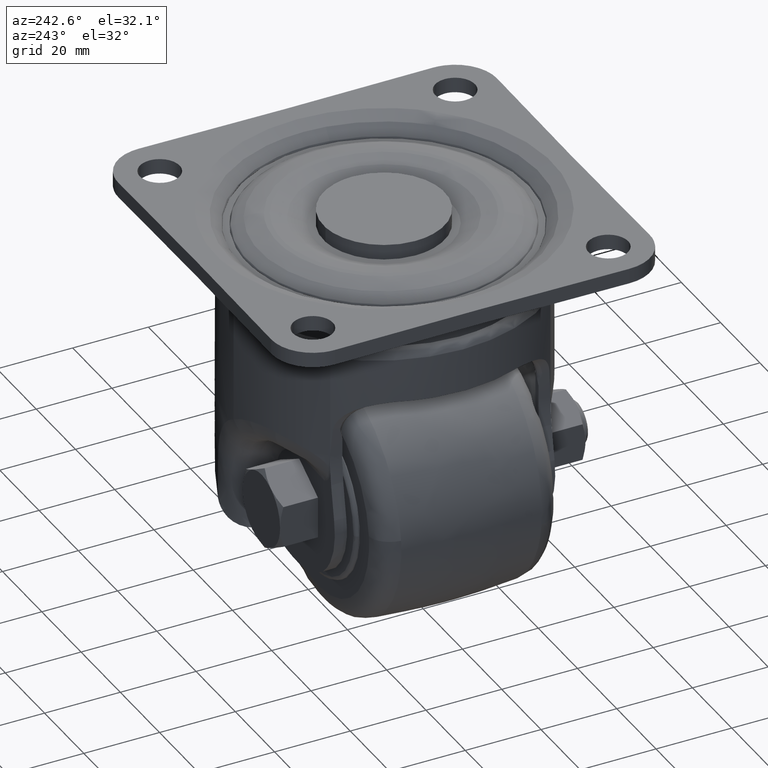
[diagram: clean part render]
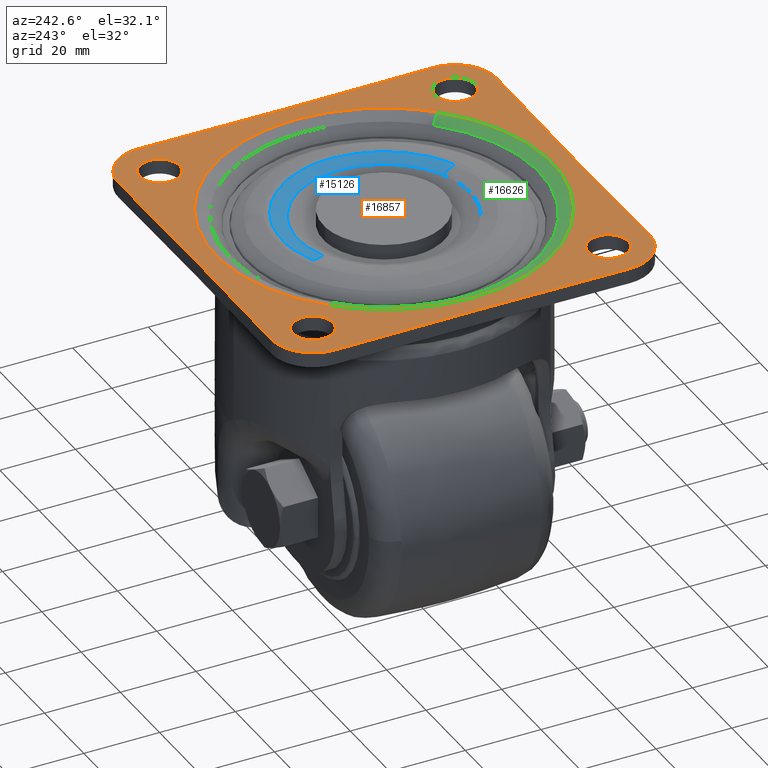
[diagram: same view with three faces highlighted in distinct colors, each labeled with its STEP entity id]
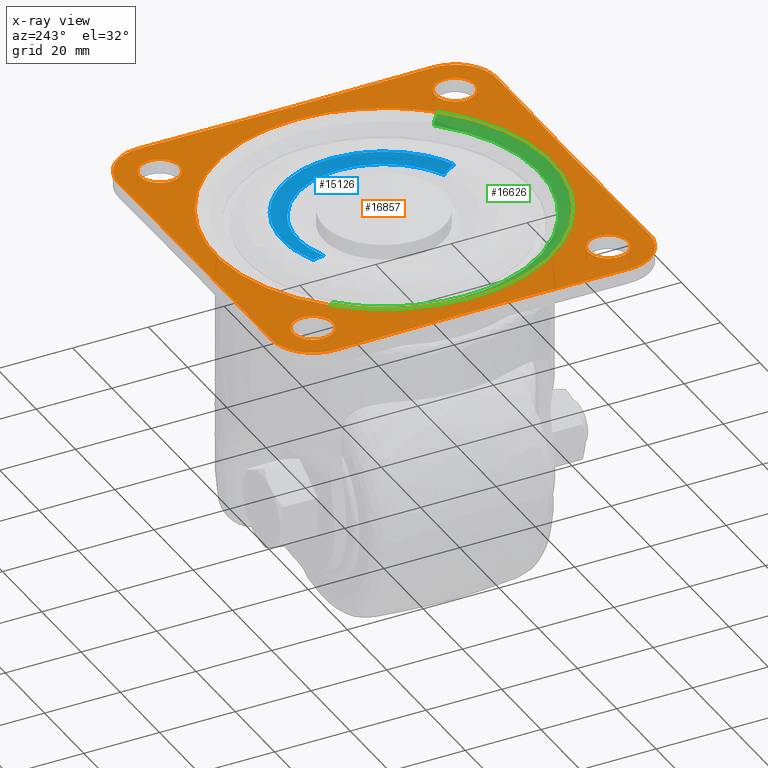
[diagram: x-ray of the same camera — body ghosted, the three highlighted faces saturated]
A machine part, auxiliary view with three faces highlighted in distinct colors.
The next image is the same camera in x-ray (body ghosted, the three faces saturated) — at least one of them is partly hidden behind the body in this view.
Their STEP definitions:

[orange] entity #16857 — the highlighted face is a freeform B-spline surface patch.
#15440=CARTESIAN_POINT('',(-39.320512832876382,-44.240207691695332,-6.938894E-017));
#15441=VERTEX_POINT('',#15440);
#15447=CARTESIAN_POINT('',(-33.750008000000008,-39.0,0.0));
#15448=VERTEX_POINT('',#15447);
#15449=CARTESIAN_POINT('',(-39.320512832876382,-44.240207691695332,0.0));
#15450=CARTESIAN_POINT('',(-39.160410007477232,-44.250000000000000,0.0));
#15451=CARTESIAN_POINT('',(-39.000008000000001,-44.250000000000000,0.0));
#15452=CARTESIAN_POINT('',(-33.750008000000001,-44.250000000000007,0.0));
#15453=CARTESIAN_POINT('',(-33.750008000000008,-39.0,0.0));
#15461=(BOUNDED_CURVE()B_SPLINE_CURVE(2,(#15449,#15450,#15451,#15452,#15453),.UNSPECIFIED.,.F.,.U.)B_SPLINE_CURVE_WITH_KNOTS((3,2,3),(0.239332962231485,0.250000000000000,0.500000000000000),.UNSPECIFIED.)CURVE()GEOMETRIC_REPRESENTATION_ITEM()RATIONAL_B_SPLINE_CURVE((0.976072041650734,0.987502787891100,1.0,0.707106781186547,1.0))REPRESENTATION_ITEM(''));
#15462=EDGE_CURVE('',#15441,#15448,#15461,.T.);
#15464=CARTESIAN_POINT('',(-38.679503167123627,-33.759792308304668,-6.938894E-017));
#15465=VERTEX_POINT('',#15464);
#15466=CARTESIAN_POINT('',(-33.750008000000008,-39.0,0.0));
#15467=CARTESIAN_POINT('',(-33.750008000000015,-34.061293149045717,0.0));
#15468=CARTESIAN_POINT('',(-38.679503167123634,-33.759792308304675,0.0));
#15476=(BOUNDED_CURVE()B_SPLINE_CURVE(2,(#15466,#15467,#15468),.UNSPECIFIED.,.F.,.U.)B_SPLINE_CURVE_WITH_KNOTS((3,3),(0.500000000000000,0.739332962231485),.UNSPECIFIED.)CURVE()GEOMETRIC_REPRESENTATION_ITEM()RATIONAL_B_SPLINE_CURVE((1.0,0.719603993295448,0.976072041650734))REPRESENTATION_ITEM(''));
#15477=EDGE_CURVE('',#15448,#15465,#15476,.T.);
#15551=CARTESIAN_POINT('',(-44.250008000000001,-39.0,0.0));
#15552=VERTEX_POINT('',#15551);
#15553=CARTESIAN_POINT('',(-38.679503167123620,-33.759792308304682,0.0));
#15554=CARTESIAN_POINT('',(-38.839605992522770,-33.750000000000000,0.0));
#15555=CARTESIAN_POINT('',(-39.000008000000001,-33.750000000000000,0.0));
#15556=CARTESIAN_POINT('',(-44.250007999999994,-33.750000000000007,0.0));
#15557=CARTESIAN_POINT('',(-44.250008000000001,-39.0,0.0));
#15565=(BOUNDED_CURVE()B_SPLINE_CURVE(2,(#15553,#15554,#15555,#15556,#15557),.UNSPECIFIED.,.F.,.U.)B_SPLINE_CURVE_WITH_KNOTS((3,2,3),(0.739332962231485,0.750000000000000,1.0),.UNSPECIFIED.)CURVE()GEOMETRIC_REPRESENTATION_ITEM()RATIONAL_B_SPLINE_CURVE((0.976072041650734,0.987502787891100,1.0,0.707106781186547,1.0))REPRESENTATION_ITEM(''));
#15566=EDGE_CURVE('',#15465,#15552,#15565,.T.);
#15568=CARTESIAN_POINT('',(-44.250008000000001,-39.0,0.0));
#15569=CARTESIAN_POINT('',(-44.250008000000008,-43.938706850954276,0.0));
#15570=CARTESIAN_POINT('',(-39.320512832876389,-44.240207691695332,0.0));
#15578=(BOUNDED_CURVE()B_SPLINE_CURVE(2,(#15568,#15569,#15570),.UNSPECIFIED.,.F.,.U.)B_SPLINE_CURVE_WITH_KNOTS((3,3),(0.0,0.239332962231485),.UNSPECIFIED.)CURVE()GEOMETRIC_REPRESENTATION_ITEM()RATIONAL_B_SPLINE_CURVE((1.0,0.719603993295448,0.976072041650733))REPRESENTATION_ITEM(''));
#15579=EDGE_CURVE('',#15552,#15441,#15578,.T.);
#15622=CARTESIAN_POINT('',(-39.320512832876382,33.759792308304668,-6.938894E-017));
#15623=VERTEX_POINT('',#15622);
#15629=CARTESIAN_POINT('',(-33.750008000000008,39.0,0.0));
#15630=VERTEX_POINT('',#15629);
#15631=CARTESIAN_POINT('',(-39.320512832876368,33.759792308304675,0.0));
#15632=CARTESIAN_POINT('',(-39.160410007477225,33.750000000000000,0.0));
#15633=CARTESIAN_POINT('',(-39.000008000000001,33.750000000000000,0.0));
#15634=CARTESIAN_POINT('',(-33.750008000000001,33.750000000000007,0.0));
#15635=CARTESIAN_POINT('',(-33.750008000000008,39.0,0.0));
#15643=(BOUNDED_CURVE()B_SPLINE_CURVE(2,(#15631,#15632,#15633,#15634,#15635),.UNSPECIFIED.,.F.,.U.)B_SPLINE_CURVE_WITH_KNOTS((3,2,3),(0.239332962231485,0.250000000000000,0.500000000000000),.UNSPECIFIED.)CURVE()GEOMETRIC_REPRESENTATION_ITEM()RATIONAL_B_SPLINE_CURVE((0.976072041650734,0.987502787891100,1.0,0.707106781186547,1.0))REPRESENTATION_ITEM(''));
#15644=EDGE_CURVE('',#15623,#15630,#15643,.T.);
#15646=CARTESIAN_POINT('',(-38.679503167123627,44.240207691695332,-6.938894E-017));
#15647=VERTEX_POINT('',#15646);
#15648=CARTESIAN_POINT('',(-33.750008000000008,39.0,0.0));
#15649=CARTESIAN_POINT('',(-33.750008000000015,43.938706850954276,0.0));
#15650=CARTESIAN_POINT('',(-38.679503167123634,44.240207691695332,0.0));
#15658=(BOUNDED_CURVE()B_SPLINE_CURVE(2,(#15648,#15649,#15650),.UNSPECIFIED.,.F.,.U.)B_SPLINE_CURVE_WITH_KNOTS((3,3),(0.500000000000000,0.739332962231485),.UNSPECIFIED.)CURVE()GEOMETRIC_REPRESENTATION_ITEM()RATIONAL_B_SPLINE_CURVE((1.0,0.719603993295448,0.976072041650734))REPRESENTATION_ITEM(''));
#15659=EDGE_CURVE('',#15630,#15647,#15658,.T.);
#15733=CARTESIAN_POINT('',(-44.250008000000001,39.0,0.0));
#15734=VERTEX_POINT('',#15733);
#15735=CARTESIAN_POINT('',(-38.679503167123620,44.240207691695332,0.0));
#15736=CARTESIAN_POINT('',(-38.839605992522770,44.250000000000000,0.0));
#15737=CARTESIAN_POINT('',(-39.000008000000001,44.250000000000000,0.0));
#15738=CARTESIAN_POINT('',(-44.250007999999994,44.250000000000007,0.0));
#15739=CARTESIAN_POINT('',(-44.250008000000001,39.0,0.0));
#15747=(BOUNDED_CURVE()B_SPLINE_CURVE(2,(#15735,#15736,#15737,#15738,#15739),.UNSPECIFIED.,.F.,.U.)B_SPLINE_CURVE_WITH_KNOTS((3,2,3),(0.739332962231485,0.750000000000000,1.0),.UNSPECIFIED.)CURVE()GEOMETRIC_REPRESENTATION_ITEM()RATIONAL_B_SPLINE_CURVE((0.976072041650734,0.987502787891100,1.0,0.707106781186547,1.0))REPRESENTATION_ITEM(''));
#15748=EDGE_CURVE('',#15647,#15734,#15747,.T.);
#15750=CARTESIAN_POINT('',(-44.250008000000001,39.0,0.0));
#15751=CARTESIAN_POINT('',(-44.250008000000008,34.061293149045710,0.0));
#15752=CARTESIAN_POINT('',(-39.320512832876382,33.759792308304682,0.0));
#15760=(BOUNDED_CURVE()B_SPLINE_CURVE(2,(#15750,#15751,#15752),.UNSPECIFIED.,.F.,.U.)B_SPLINE_CURVE_WITH_KNOTS((3,3),(0.0,0.239332962231485),.UNSPECIFIED.)CURVE()GEOMETRIC_REPRESENTATION_ITEM()RATIONAL_B_SPLINE_CURVE((1.0,0.719603993295447,0.976072041650734))REPRESENTATION_ITEM(''));
#15761=EDGE_CURVE('',#15734,#15623,#15760,.T.);
#15804=CARTESIAN_POINT('',(38.679503167123627,33.759792308304668,-7.632783E-017));
#15805=VERTEX_POINT('',#15804);
#15811=CARTESIAN_POINT('',(44.250008000000001,39.0,0.0));
#15812=VERTEX_POINT('',#15811);
#15813=CARTESIAN_POINT('',(38.679503167123634,33.759792308304675,0.0));
#15814=CARTESIAN_POINT('',(38.839605992522770,33.750000000000007,0.0));
#15815=CARTESIAN_POINT('',(39.000008000000001,33.750000000000000,0.0));
#15816=CARTESIAN_POINT('',(44.250007999999994,33.750000000000007,0.0));
#15817=CARTESIAN_POINT('',(44.250008000000001,39.0,0.0));
#15825=(BOUNDED_CURVE()B_SPLINE_CURVE(2,(#15813,#15814,#15815,#15816,#15817),.UNSPECIFIED.,.F.,.U.)B_SPLINE_CURVE_WITH_KNOTS((3,2,3),(0.239332962231485,0.250000000000000,0.500000000000000),.UNSPECIFIED.)CURVE()GEOMETRIC_REPRESENTATION_ITEM()RATIONAL_B_SPLINE_CURVE((0.976072041650734,0.987502787891100,1.0,0.707106781186547,1.0))REPRESENTATION_ITEM(''));
#15826=EDGE_CURVE('',#15805,#15812,#15825,.T.);
#15828=CARTESIAN_POINT('',(39.320512832876382,44.240207691695332,-7.632783E-017));
#15829=VERTEX_POINT('',#15828);
#15830=CARTESIAN_POINT('',(44.250008000000001,39.0,0.0));
#15831=CARTESIAN_POINT('',(44.250008000000001,43.938706850954269,0.0));
#15832=CARTESIAN_POINT('',(39.320512832876375,44.240207691695332,0.0));
#15840=(BOUNDED_CURVE()B_SPLINE_CURVE(2,(#15830,#15831,#15832),.UNSPECIFIED.,.F.,.U.)B_SPLINE_CURVE_WITH_KNOTS((3,3),(0.500000000000000,0.739332962231485),.UNSPECIFIED.)CURVE()GEOMETRIC_REPRESENTATION_ITEM()RATIONAL_B_SPLINE_CURVE((1.0,0.719603993295448,0.976072041650734))REPRESENTATION_ITEM(''));
#15841=EDGE_CURVE('',#15812,#15829,#15840,.T.);
#15915=CARTESIAN_POINT('',(33.750008000000008,39.0,0.0));
#15916=VERTEX_POINT('',#15915);
#15917=CARTESIAN_POINT('',(39.320512832876389,44.240207691695332,0.0));
#15918=CARTESIAN_POINT('',(39.160410007477225,44.250000000000000,0.0));
#15919=CARTESIAN_POINT('',(39.000008000000001,44.250000000000000,0.0));
#15920=CARTESIAN_POINT('',(33.750008000000001,44.250000000000007,0.0));
#15921=CARTESIAN_POINT('',(33.750008000000008,39.0,0.0));
#15929=(BOUNDED_CURVE()B_SPLINE_CURVE(2,(#15917,#15918,#15919,#15920,#15921),.UNSPECIFIED.,.F.,.U.)B_SPLINE_CURVE_WITH_KNOTS((3,2,3),(0.739332962231485,0.750000000000000,1.0),.UNSPECIFIED.)CURVE()GEOMETRIC_REPRESENTATION_ITEM()RATIONAL_B_SPLINE_CURVE((0.976072041650734,0.987502787891100,1.0,0.707106781186547,1.0))REPRESENTATION_ITEM(''));
#15930=EDGE_CURVE('',#15829,#15916,#15929,.T.);
#15932=CARTESIAN_POINT('',(33.750008000000008,39.0,0.0));
#15933=CARTESIAN_POINT('',(33.750008000000001,34.061293149045724,0.0));
#15934=CARTESIAN_POINT('',(38.679503167123634,33.759792308304675,0.0));
#15942=(BOUNDED_CURVE()B_SPLINE_CURVE(2,(#15932,#15933,#15934),.UNSPECIFIED.,.F.,.U.)B_SPLINE_CURVE_WITH_KNOTS((3,3),(0.0,0.239332962231485),.UNSPECIFIED.)CURVE()GEOMETRIC_REPRESENTATION_ITEM()RATIONAL_B_SPLINE_CURVE((1.0,0.719603993295448,0.976072041650734))REPRESENTATION_ITEM(''));
#15943=EDGE_CURVE('',#15916,#15805,#15942,.T.);
#15986=CARTESIAN_POINT('',(38.679503167123627,-44.240207691695332,-7.632783E-017));
#15987=VERTEX_POINT('',#15986);
#15993=CARTESIAN_POINT('',(44.250008000000001,-39.0,0.0));
#15994=VERTEX_POINT('',#15993);
#15995=CARTESIAN_POINT('',(38.679503167123634,-44.240207691695332,0.0));
#15996=CARTESIAN_POINT('',(38.839605992522770,-44.250000000000000,0.0));
#15997=CARTESIAN_POINT('',(39.000008000000001,-44.250000000000000,0.0));
#15998=CARTESIAN_POINT('',(44.250007999999994,-44.250000000000007,0.0));
#15999=CARTESIAN_POINT('',(44.250008000000001,-39.0,0.0));
#16007=(BOUNDED_CURVE()B_SPLINE_CURVE(2,(#15995,#15996,#15997,#15998,#15999),.UNSPECIFIED.,.F.,.U.)B_SPLINE_CURVE_WITH_KNOTS((3,2,3),(0.239332962231485,0.250000000000000,0.500000000000000),.UNSPECIFIED.)CURVE()GEOMETRIC_REPRESENTATION_ITEM()RATIONAL_B_SPLINE_CURVE((0.976072041650734,0.987502787891100,1.0,0.707106781186547,1.0))REPRESENTATION_ITEM(''));
#16008=EDGE_CURVE('',#15987,#15994,#16007,.T.);
#16010=CARTESIAN_POINT('',(39.320512832876382,-33.759792308304668,-7.632783E-017));
#16011=VERTEX_POINT('',#16010);
#16012=CARTESIAN_POINT('',(44.250008000000001,-39.0,0.0));
#16013=CARTESIAN_POINT('',(44.250008000000001,-34.061293149045717,0.0));
#16014=CARTESIAN_POINT('',(39.320512832876375,-33.759792308304675,0.0));
#16022=(BOUNDED_CURVE()B_SPLINE_CURVE(2,(#16012,#16013,#16014),.UNSPECIFIED.,.F.,.U.)B_SPLINE_CURVE_WITH_KNOTS((3,3),(0.500000000000000,0.739332962231485),.UNSPECIFIED.)CURVE()GEOMETRIC_REPRESENTATION_ITEM()RATIONAL_B_SPLINE_CURVE((1.0,0.719603993295448,0.976072041650734))REPRESENTATION_ITEM(''));
#16023=EDGE_CURVE('',#15994,#16011,#16022,.T.);
#16097=CARTESIAN_POINT('',(33.750008000000008,-39.0,0.0));
#16098=VERTEX_POINT('',#16097);
#16099=CARTESIAN_POINT('',(39.320512832876389,-33.759792308304675,0.0));
#16100=CARTESIAN_POINT('',(39.160410007477225,-33.750000000000000,0.0));
#16101=CARTESIAN_POINT('',(39.000008000000001,-33.750000000000000,0.0));
#16102=CARTESIAN_POINT('',(33.750008000000001,-33.750000000000007,0.0));
#16103=CARTESIAN_POINT('',(33.750008000000008,-39.0,0.0));
#16111=(BOUNDED_CURVE()B_SPLINE_CURVE(2,(#16099,#16100,#16101,#16102,#16103),.UNSPECIFIED.,.F.,.U.)B_SPLINE_CURVE_WITH_KNOTS((3,2,3),(0.739332962231485,0.750000000000000,1.0),.UNSPECIFIED.)CURVE()GEOMETRIC_REPRESENTATION_ITEM()RATIONAL_B_SPLINE_CURVE((0.976072041650734,0.987502787891100,1.0,0.707106781186547,1.0))REPRESENTATION_ITEM(''));
#16112=EDGE_CURVE('',#16011,#16098,#16111,.T.);
#16114=CARTESIAN_POINT('',(33.750008000000008,-39.0,0.0));
#16115=CARTESIAN_POINT('',(33.750008000000001,-43.938706850954283,0.0));
#16116=CARTESIAN_POINT('',(38.679503167123634,-44.240207691695332,0.0));
#16124=(BOUNDED_CURVE()B_SPLINE_CURVE(2,(#16114,#16115,#16116),.UNSPECIFIED.,.F.,.U.)B_SPLINE_CURVE_WITH_KNOTS((3,3),(0.0,0.239332962231485),.UNSPECIFIED.)CURVE()GEOMETRIC_REPRESENTATION_ITEM()RATIONAL_B_SPLINE_CURVE((1.0,0.719603993295448,0.976072041650734))REPRESENTATION_ITEM(''));
#16125=EDGE_CURVE('',#16098,#15987,#16124,.T.);
#16564=CARTESIAN_POINT('',(-32.030626062043240,30.845302345961620,-8.428043E-016));
#16565=VERTEX_POINT('',#16564);
#16579=CARTESIAN_POINT('',(-44.467894967102353,0.0,0.0));
#16580=VERTEX_POINT('',#16579);
#16581=CARTESIAN_POINT('',(-44.467894967102353,0.0,0.0));
#16582=CARTESIAN_POINT('',(-44.467894966839054,17.930093895800482,-4.214022E-016));
#16583=CARTESIAN_POINT('',(-32.030626062043233,30.845302345961628,-8.428043E-016));
#16591=(BOUNDED_CURVE()B_SPLINE_CURVE(2,(#16581,#16582,#16583),.UNSPECIFIED.,.F.,.U.)B_SPLINE_CURVE_WITH_KNOTS((3,3),(0.0,0.122155737437364),.UNSPECIFIED.)CURVE()GEOMETRIC_REPRESENTATION_ITEM()RATIONAL_B_SPLINE_CURVE((1.0,0.856885651461758,0.853629213191971))REPRESENTATION_ITEM(''));
#16592=EDGE_CURVE('',#16580,#16565,#16591,.T.);
#16594=CARTESIAN_POINT('',(32.030626062043247,-30.845302345961620,-7.826040E-016));
#16595=VERTEX_POINT('',#16594);
#16596=CARTESIAN_POINT('',(32.030626062043261,-30.845302345961628,-7.826040E-016));
#16597=CARTESIAN_POINT('',(18.912150409898615,-44.467894966638717,-7.155009E-016));
#16598=CARTESIAN_POINT('',(-3.694496E-010,-44.467894966746563,-5.490806E-016));
#16599=CARTESIAN_POINT('',(-44.467894967208515,-44.467894967000106,-1.577786E-016));
#16600=CARTESIAN_POINT('',(-44.467894967102353,0.0,0.0));
#16608=(BOUNDED_CURVE()B_SPLINE_CURVE(2,(#16596,#16597,#16598,#16599,#16600),.UNSPECIFIED.,.F.,.U.)B_SPLINE_CURVE_WITH_KNOTS((3,2,3),(0.622155737437364,0.750000000000000,1.0),.UNSPECIFIED.)CURVE()GEOMETRIC_REPRESENTATION_ITEM()RATIONAL_B_SPLINE_CURVE((0.853629213191971,0.850221129724790,1.0,0.707106781186547,1.0))REPRESENTATION_ITEM(''));
#16609=EDGE_CURVE('',#16595,#16580,#16608,.T.);
#16658=CARTESIAN_POINT('',(44.467894967102353,0.0,0.0));
#16659=VERTEX_POINT('',#16658);
#16660=CARTESIAN_POINT('',(44.467894967102353,0.0,0.0));
#16661=CARTESIAN_POINT('',(44.467894966839076,-17.930093895800496,-3.913020E-016));
#16662=CARTESIAN_POINT('',(32.030626062043261,-30.845302345961628,-7.826040E-016));
#16670=(BOUNDED_CURVE()B_SPLINE_CURVE(2,(#16660,#16661,#16662),.UNSPECIFIED.,.F.,.U.)B_SPLINE_CURVE_WITH_KNOTS((3,3),(0.500000000000000,0.622155737437364),.UNSPECIFIED.)CURVE()GEOMETRIC_REPRESENTATION_ITEM()RATIONAL_B_SPLINE_CURVE((1.0,0.856885651461758,0.853629213191971))REPRESENTATION_ITEM(''));
#16671=EDGE_CURVE('',#16659,#16595,#16670,.T.);
#16673=CARTESIAN_POINT('',(-32.030626062043233,30.845302345961628,-8.428043E-016));
#16674=CARTESIAN_POINT('',(-18.912150409898594,44.467894966638738,-7.705395E-016));
#16675=CARTESIAN_POINT('',(3.694645E-010,44.467894966746563,-5.913176E-016));
#16676=CARTESIAN_POINT('',(44.467894967208515,44.467894967000120,-1.699154E-016));
#16677=CARTESIAN_POINT('',(44.467894967102353,0.0,0.0));
#16685=(BOUNDED_CURVE()B_SPLINE_CURVE(2,(#16673,#16674,#16675,#16676,#16677),.UNSPECIFIED.,.F.,.U.)B_SPLINE_CURVE_WITH_KNOTS((3,2,3),(0.122155737437364,0.250000000000000,0.500000000000000),.UNSPECIFIED.)CURVE()GEOMETRIC_REPRESENTATION_ITEM()RATIONAL_B_SPLINE_CURVE((0.853629213191971,0.850221129724790,1.0,0.707106781186547,1.0))REPRESENTATION_ITEM(''));
#16686=EDGE_CURVE('',#16565,#16659,#16685,.T.);
#16694=CARTESIAN_POINT('',(-54.994023625542113,54.993999253999000,0.0));
#16695=CARTESIAN_POINT('',(54.994001681264429,54.993999253999000,0.0));
#16696=CARTESIAN_POINT('',(-54.994023625542113,-54.994019940467560,0.0));
#16697=CARTESIAN_POINT('',(54.994001681264429,-54.994019940467560,0.0));
#16698=B_SPLINE_SURFACE_WITH_KNOTS('',1,1,((#16694,#16696),(#16695,#16697)),.UNSPECIFIED.,.F.,.F.,.U.,(2,2),(2,2),(0.0,109.988025306806610),(0.0,109.988019194466600),.UNSPECIFIED.);
#16699=CARTESIAN_POINT('',(49.999088974296697,38.859327055020650,0.0));
#16700=VERTEX_POINT('',#16699);
#16701=CARTESIAN_POINT('',(38.859326373033753,49.999089506773103,0.0));
#16702=VERTEX_POINT('',#16701);
#16703=CARTESIAN_POINT('',(49.999088974296697,38.859327055020650,0.0));
#16704=CARTESIAN_POINT('',(50.012386699807109,39.865347592758219,0.0));
#16705=CARTESIAN_POINT('',(49.828526719753633,41.330964252392207,0.0));
#16706=CARTESIAN_POINT('',(49.186726440136788,43.242116746062713,0.0));
#16707=CARTESIAN_POINT('',(48.370703925766442,44.884973658260463,0.0));
#16708=CARTESIAN_POINT('',(47.314907620723858,46.278926478351281,0.0));
#16709=CARTESIAN_POINT('',(46.087397977937393,47.446515713429832,0.0));
#16710=CARTESIAN_POINT('',(44.875939578529241,48.352289629391329,0.0));
#16711=CARTESIAN_POINT('',(43.211853964028123,49.231566424973572,0.0));
#16712=CARTESIAN_POINT('',(41.147647190058208,49.867783785384681,0.0));
#16713=CARTESIAN_POINT('',(39.636672661983447,50.009177331080110,0.0));
#16714=CARTESIAN_POINT('',(38.859326373033753,49.999089506773103,0.0));
#16715=B_SPLINE_CURVE_WITH_KNOTS('',3,(#16703,#16704,#16705,#16706,#16707,#16708,#16709,#16710,#16711,#16712,#16713,#16714),.UNSPECIFIED.,.F.,.U.,(4,1,1,1,1,1,1,1,1,4),(0.000000040892363,3.018187092819023,4.390091998124733,6.036387196978076,8.505815266299655,9.603286536846007,11.112402728840721,13.033080650570620,15.228142632548270,17.560363550113639),.UNSPECIFIED.);
#16716=EDGE_CURVE('',#16700,#16702,#16715,.T.);
#16717=ORIENTED_EDGE('',*,*,#16716,.T.);
#16718=CARTESIAN_POINT('',(-38.859172592322402,49.999087381304903,0.0));
#16719=VERTEX_POINT('',#16718);
#16720=CARTESIAN_POINT('',(-38.859172592322402,49.999087381304903,0.0));
#16721=CARTESIAN_POINT('',(0.000076903978388,49.500875449576050,0.0));
#16722=CARTESIAN_POINT('',(38.859326373034172,49.999089506772791,0.0));
#16730=(BOUNDED_CURVE()B_SPLINE_CURVE(2,(#16720,#16721,#16722),.UNSPECIFIED.,.F.,.U.)CURVE()GEOMETRIC_REPRESENTATION_ITEM()QUASI_UNIFORM_CURVE()RATIONAL_B_SPLINE_CURVE((1.0,0.999917821586693,1.0))REPRESENTATION_ITEM(''));
#16731=EDGE_CURVE('',#16719,#16702,#16730,.T.);
#16732=ORIENTED_EDGE('',*,*,#16731,.F.);
#16733=CARTESIAN_POINT('',(-49.999113600735193,38.859141825077252,0.0));
#16734=VERTEX_POINT('',#16733);
#16735=CARTESIAN_POINT('',(-38.859172592322402,49.999087381304903,0.0));
#16736=CARTESIAN_POINT('',(-39.865213066904033,50.012390665620671,0.0));
#16737=CARTESIAN_POINT('',(-41.330838175129692,49.828501183736464,0.0));
#16738=CARTESIAN_POINT('',(-43.415812761010343,49.128430334916928,0.0));
#16739=CARTESIAN_POINT('',(-45.203847455734007,48.183912190046463,0.0));
#16740=CARTESIAN_POINT('',(-46.931267416434324,46.734482684405258,0.0));
#16741=CARTESIAN_POINT('',(-48.266529443362643,45.038211118198547,0.0));
#16742=CARTESIAN_POINT('',(-49.231586660992178,43.211739172483739,0.0));
#16743=CARTESIAN_POINT('',(-49.867787181001667,41.147497959673132,0.0));
#16744=CARTESIAN_POINT('',(-50.009207780252723,39.636500534122597,0.0));
#16745=CARTESIAN_POINT('',(-49.999113600735193,38.859141825077252,0.0));
#16746=B_SPLINE_CURVE_WITH_KNOTS('',3,(#16735,#16736,#16737,#16738,#16739,#16740,#16741,#16742,#16743,#16744,#16745),.UNSPECIFIED.,.F.,.U.,(4,1,1,1,1,1,1,1,4),(0.000000041193037,3.018236197495593,4.390163422996753,6.585253097896390,9.054691533246373,11.112583522299200,13.033292692487940,15.228390387014770,17.560649248636580),.UNSPECIFIED.);
#16747=EDGE_CURVE('',#16719,#16734,#16746,.T.);
#16748=ORIENTED_EDGE('',*,*,#16747,.T.);
#16749=CARTESIAN_POINT('',(-49.999113580391203,-38.859138340362598,0.0));
#16750=VERTEX_POINT('',#16749);
#16751=CARTESIAN_POINT('',(-49.999113580391203,-38.859138340362598,0.0));
#16752=CARTESIAN_POINT('',(-49.500887203865588,0.000001742465876,0.0));
#16753=CARTESIAN_POINT('',(-49.999113599427332,38.859141825093459,0.0));
#16761=(BOUNDED_CURVE()B_SPLINE_CURVE(2,(#16751,#16752,#16753),.UNSPECIFIED.,.F.,.U.)CURVE()GEOMETRIC_REPRESENTATION_ITEM()QUASI_UNIFORM_CURVE()RATIONAL_B_SPLINE_CURVE((1.0,0.999917816706712,1.0))REPRESENTATION_ITEM(''));
#16762=EDGE_CURVE('',#16750,#16734,#16761,.T.);
#16763=ORIENTED_EDGE('',*,*,#16762,.F.);
#16764=CARTESIAN_POINT('',(-38.859143584878602,-49.999107511081000,0.0));
#16765=VERTEX_POINT('',#16764);
#16766=CARTESIAN_POINT('',(-49.999113580391203,-38.859138340362598,0.0));
#16767=CARTESIAN_POINT('',(-50.012413211734767,-39.865177761765722,0.0));
#16768=CARTESIAN_POINT('',(-49.828549788335032,-41.330821378416807,0.0));
#16769=CARTESIAN_POINT('',(-49.186734360137017,-43.242010174183761,0.0));
#16770=CARTESIAN_POINT('',(-48.370711639888299,-44.884900704966732,0.0));
#16771=CARTESIAN_POINT('',(-47.120361187444423,-46.535667502377223,0.0));
#16772=CARTESIAN_POINT('',(-45.423572526004939,-48.014273517848707,0.0));
#16773=CARTESIAN_POINT('',(-43.473188314625283,-49.140118325653788,0.0));
#16774=CARTESIAN_POINT('',(-41.239099849840898,-49.859273928381207,0.0));
#16775=CARTESIAN_POINT('',(-39.636500571237818,-50.009188355071842,0.0));
#16776=CARTESIAN_POINT('',(-38.859143584878602,-49.999107511081000,0.0));
#16777=B_SPLINE_CURVE_WITH_KNOTS('',3,(#16766,#16767,#16768,#16769,#16770,#16771,#16772,#16773,#16774,#16775,#16776),.UNSPECIFIED.,.F.,.U.,(4,1,1,1,1,1,1,1,4),(0.000000041241520,3.018243525445113,4.390174081809194,6.036500062118861,8.505974303341635,10.563839516043750,12.758936492793080,15.228427359681000,17.560691883731032),.UNSPECIFIED.);
#16778=EDGE_CURVE('',#16750,#16765,#16777,.T.);
#16779=ORIENTED_EDGE('',*,*,#16778,.T.);
#16780=CARTESIAN_POINT('',(38.859112224408648,-49.999107261167403,0.0));
#16781=VERTEX_POINT('',#16780);
#16782=CARTESIAN_POINT('',(38.859112224408648,-49.999107261167403,0.0));
#16783=CARTESIAN_POINT('',(-0.000015681835654,-49.500878411463674,0.0));
#16784=CARTESIAN_POINT('',(-38.859143584898099,-49.999107509454802,0.0));
#16792=(BOUNDED_CURVE()B_SPLINE_CURVE(2,(#16782,#16783,#16784),.UNSPECIFIED.,.F.,.U.)CURVE()GEOMETRIC_REPRESENTATION_ITEM()QUASI_UNIFORM_CURVE()RATIONAL_B_SPLINE_CURVE((1.0,0.999917815801585,1.0))REPRESENTATION_ITEM(''));
#16793=EDGE_CURVE('',#16781,#16765,#16792,.T.);
#16794=ORIENTED_EDGE('',*,*,#16793,.F.);
#16795=CARTESIAN_POINT('',(49.999086581534897,-38.859138427465403,0.0));
#16796=VERTEX_POINT('',#16795);
#16797=CARTESIAN_POINT('',(38.859112224408648,-49.999107261167403,0.0));
#16798=CARTESIAN_POINT('',(39.590740556758973,-50.008577002566092,0.0));
#16799=CARTESIAN_POINT('',(40.964266549595962,-49.888686975865880,0.0));
#16800=CARTESIAN_POINT('',(42.997153043311819,-49.317301009768997,0.0));
#16801=CARTESIAN_POINT('',(44.725802692958680,-48.458381832613703,0.0));
#16802=CARTESIAN_POINT('',(46.275573588022041,-47.314715594379408,0.0));
#16803=CARTESIAN_POINT('',(47.397399532365583,-46.164546555663833,0.0));
#16804=CARTESIAN_POINT('',(48.449094877443628,-44.720640606517257,0.0));
#16805=CARTESIAN_POINT('',(49.182740579580738,-43.289145202963212,0.0));
#16806=CARTESIAN_POINT('',(49.842686737763252,-41.239177833148617,0.0));
#16807=CARTESIAN_POINT('',(50.011696107789767,-39.819436544613353,0.0));
#16808=CARTESIAN_POINT('',(49.999086581534897,-38.859138427465403,0.0));
#16809=B_SPLINE_CURVE_WITH_KNOTS('',3,(#16797,#16798,#16799,#16800,#16801,#16802,#16803,#16804,#16805,#16806,#16807,#16808),.UNSPECIFIED.,.F.,.U.,(4,1,1,1,1,1,1,1,1,4),(0.000000041236369,2.195061499117408,4.115786445490356,6.310878562661907,7.957221728796965,9.877852845926746,11.112611838742470,13.307715126677600,14.679660456290399,17.560693995647881),.UNSPECIFIED.);
#16810=EDGE_CURVE('',#16781,#16796,#16809,.T.);
#16811=ORIENTED_EDGE('',*,*,#16810,.T.);
#16812=CARTESIAN_POINT('',(49.999088974296697,38.859327055020650,0.0));
#16813=CARTESIAN_POINT('',(49.500875653249565,0.000094329118508,0.0));
#16814=CARTESIAN_POINT('',(49.999086581514973,-38.859138427463719,0.0));
#16822=(BOUNDED_CURVE()B_SPLINE_CURVE(2,(#16812,#16813,#16814),.UNSPECIFIED.,.F.,.U.)CURVE()GEOMETRIC_REPRESENTATION_ITEM()QUASI_UNIFORM_CURVE()RATIONAL_B_SPLINE_CURVE((1.0,0.999917821802801,1.0))REPRESENTATION_ITEM(''));
#16823=EDGE_CURVE('',#16700,#16796,#16822,.T.);
#16824=ORIENTED_EDGE('',*,*,#16823,.F.);
#16825=EDGE_LOOP('',(#16717,#16732,#16748,#16763,#16779,#16794,#16811,#16824));
#16826=FACE_OUTER_BOUND('',#16825,.T.);
#16827=ORIENTED_EDGE('',*,*,#16592,.T.);
#16828=ORIENTED_EDGE('',*,*,#16686,.T.);
#16829=ORIENTED_EDGE('',*,*,#16671,.T.);
#16830=ORIENTED_EDGE('',*,*,#16609,.T.);
#16831=EDGE_LOOP('',(#16827,#16828,#16829,#16830));
#16832=FACE_BOUND('',#16831,.T.);
#16833=ORIENTED_EDGE('',*,*,#16023,.F.);
#16834=ORIENTED_EDGE('',*,*,#16008,.F.);
#16835=ORIENTED_EDGE('',*,*,#16125,.F.);
#16836=ORIENTED_EDGE('',*,*,#16112,.F.);
#16837=EDGE_LOOP('',(#16833,#16834,#16835,#16836));
#16838=FACE_BOUND('',#16837,.T.);
#16839=ORIENTED_EDGE('',*,*,#15841,.F.);
#16840=ORIENTED_EDGE('',*,*,#15826,.F.);
#16841=ORIENTED_EDGE('',*,*,#15943,.F.);
#16842=ORIENTED_EDGE('',*,*,#15930,.F.);
#16843=EDGE_LOOP('',(#16839,#16840,#16841,#16842));
#16844=FACE_BOUND('',#16843,.T.);
#16845=ORIENTED_EDGE('',*,*,#15659,.F.);
#16846=ORIENTED_EDGE('',*,*,#15644,.F.);
#16847=ORIENTED_EDGE('',*,*,#15761,.F.);
#16848=ORIENTED_EDGE('',*,*,#15748,.F.);
#16849=EDGE_LOOP('',(#16845,#16846,#16847,#16848));
#16850=FACE_BOUND('',#16849,.T.);
#16851=ORIENTED_EDGE('',*,*,#15477,.F.);
#16852=ORIENTED_EDGE('',*,*,#15462,.F.);
#16853=ORIENTED_EDGE('',*,*,#15579,.F.);
#16854=ORIENTED_EDGE('',*,*,#15566,.F.);
#16855=EDGE_LOOP('',(#16851,#16852,#16853,#16854));
#16856=FACE_BOUND('',#16855,.T.);
#16857=ADVANCED_FACE('',(#16826,#16832,#16838,#16844,#16850,#16856),#16698,.F.);

[blue] entity #15126 — the highlighted face is a freeform B-spline surface patch.
#14872=CARTESIAN_POINT('',(-11.107844210143220,24.396503559949188,-1.000000000000001));
#14873=VERTEX_POINT('',#14872);
#14887=CARTESIAN_POINT('',(26.806222952348399,0.0,-1.0));
#14888=VERTEX_POINT('',#14887);
#14889=CARTESIAN_POINT('',(-11.107844210143218,24.396503559949192,-1.000000000000001));
#14890=CARTESIAN_POINT('',(-5.815302596032915,26.806222951975979,-1.000000000000001));
#14891=CARTESIAN_POINT('',(1.497923E-010,26.806222952019411,-1.000000000000001));
#14892=CARTESIAN_POINT('',(26.806222952407047,26.806222952219592,-1.000000000000000));
#14893=CARTESIAN_POINT('',(26.806222952348399,0.0,-1.0));
#14901=(BOUNDED_CURVE()B_SPLINE_CURVE(2,(#14889,#14890,#14891,#14892,#14893),.UNSPECIFIED.,.F.,.U.)B_SPLINE_CURVE_WITH_KNOTS((3,2,3),(0.179624510040583,0.250000000000000,0.500000000000000),.UNSPECIFIED.)CURVE()GEOMETRIC_REPRESENTATION_ITEM()RATIONAL_B_SPLINE_CURVE((0.881519651451072,0.917549984880850,1.0,0.707106781186548,1.0))REPRESENTATION_ITEM(''));
#14902=EDGE_CURVE('',#14873,#14888,#14901,.T.);
#14904=CARTESIAN_POINT('',(11.107844210143231,-24.396503559949181,-1.000000000000002));
#14905=VERTEX_POINT('',#14904);
#14906=CARTESIAN_POINT('',(26.806222952348399,0.0,-1.0));
#14907=CARTESIAN_POINT('',(26.806222952257254,-17.248956986939611,-1.000000000000001));
#14908=CARTESIAN_POINT('',(11.107844210143231,-24.396503559949178,-1.000000000000002));
#14916=(BOUNDED_CURVE()B_SPLINE_CURVE(2,(#14906,#14907,#14908),.UNSPECIFIED.,.F.,.U.)B_SPLINE_CURVE_WITH_KNOTS((3,3),(0.500000000000000,0.679624510040583),.UNSPECIFIED.)CURVE()GEOMETRIC_REPRESENTATION_ITEM()RATIONAL_B_SPLINE_CURVE((1.0,0.789556796305698,0.881519651451072))REPRESENTATION_ITEM(''));
#14917=EDGE_CURVE('',#14888,#14905,#14916,.T.);
#14966=CARTESIAN_POINT('',(9.405346878296907,-20.657255743158469,-1.883008796973252));
#14967=VERTEX_POINT('',#14966);
#15000=CARTESIAN_POINT('',(-9.405346878296903,20.657255743158469,-1.883008796973252));
#15001=VERTEX_POINT('',#15000);
#15015=CARTESIAN_POINT('',(-9.405346878296903,20.657255743158476,-1.883008796973251));
#15016=CARTESIAN_POINT('',(-10.217276592176432,22.440522214828906,-1.000000000094548));
#15017=CARTESIAN_POINT('',(-11.107844210143220,24.396503559949185,-1.000000000000001));
#15025=(BOUNDED_CURVE()B_SPLINE_CURVE(2,(#15015,#15016,#15017),.UNSPECIFIED.,.F.,.U.)B_SPLINE_CURVE_WITH_KNOTS((3,3),(-1.409530568128598,-0.607091926434839),.UNSPECIFIED.)CURVE()GEOMETRIC_REPRESENTATION_ITEM()RATIONAL_B_SPLINE_CURVE((0.945461484992675,0.923927245019978,0.944587428659079))REPRESENTATION_ITEM(''));
#15026=EDGE_CURVE('',#15001,#14873,#15025,.T.);
#15030=CARTESIAN_POINT('',(9.405346878296907,-20.657255743158476,-1.883008796973251));
#15031=CARTESIAN_POINT('',(10.217276592176443,-22.440522214828910,-1.000000000094549));
#15032=CARTESIAN_POINT('',(11.107844210143231,-24.396503559949185,-1.000000000000002));
#15040=(BOUNDED_CURVE()B_SPLINE_CURVE(2,(#15030,#15031,#15032),.UNSPECIFIED.,.F.,.U.)B_SPLINE_CURVE_WITH_KNOTS((3,3),(-1.409530568128598,-0.607091926434839),.UNSPECIFIED.)CURVE()GEOMETRIC_REPRESENTATION_ITEM()RATIONAL_B_SPLINE_CURVE((0.945461484992675,0.923927245019978,0.944587428659079))REPRESENTATION_ITEM(''));
#15041=EDGE_CURVE('',#14967,#14905,#15040,.T.);
#15046=CARTESIAN_POINT('',(-9.899226736468762,20.223463160180145,-1.971106621460883));
#15047=CARTESIAN_POINT('',(-9.614558535987090,20.353073947016444,-1.971106621460884));
#15048=CARTESIAN_POINT('',(11.157647978592129,29.810758458758286,-1.971106621460883));
#15049=CARTESIAN_POINT('',(20.484203218675201,9.326555240083076,-1.971106621460884));
#15050=CARTESIAN_POINT('',(29.810758458758286,-11.157647978592129,-1.971106621460883));
#15051=CARTESIAN_POINT('',(9.038551944267949,-20.615332490293486,-1.971106621460883));
#15052=CARTESIAN_POINT('',(8.753883743873113,-20.744943277090261,-1.971106621460883));
#15053=CARTESIAN_POINT('',(-10.840197301061469,22.145803566602897,-0.952497459596117));
#15054=CARTESIAN_POINT('',(-10.528469977230086,22.287734501114723,-0.952497459596117));
#15055=CARTESIAN_POINT('',(12.218237719330569,32.644418800584219,-0.952497459596117));
#15056=CARTESIAN_POINT('',(22.431328259957390,10.213090540626819,-0.952497459596117));
#15057=CARTESIAN_POINT('',(32.644418800584219,-12.218237719330567,-0.952497459596117));
#15058=CARTESIAN_POINT('',(9.897711104120889,-22.574922018755736,-0.952497459596117));
#15059=CARTESIAN_POINT('',(9.585983780384600,-22.716852953224269,-0.952497459596117));
#15060=CARTESIAN_POINT('',(-11.882145081857878,24.274433723354353,-1.002200097631840));
#15061=CARTESIAN_POINT('',(-11.540454872272758,24.430006902387532,-1.002200097631840));
#15062=CARTESIAN_POINT('',(13.392641221714506,35.782164247461516,-1.002200097631840));
#15063=CARTESIAN_POINT('',(24.587402734588007,11.194761512873507,-1.002200097631840));
#15064=CARTESIAN_POINT('',(35.782164247461516,-13.392641221714500,-1.002200097631840));
#15065=CARTESIAN_POINT('',(10.849068153580953,-24.744798566739899,-1.002200097631840));
#15066=CARTESIAN_POINT('',(10.507377944100059,-24.900371745725632,-1.002200097631840));
#15074=(BOUNDED_SURFACE()B_SPLINE_SURFACE(2,2,((#15046,#15053,#15060),(#15047,#15054,#15061),(#15048,#15055,#15062),(#15049,#15056,#15063),(#15050,#15057,#15064),(#15051,#15058,#15065),(#15052,#15059,#15066)),.UNSPECIFIED.,.F.,.F.,.U.)B_SPLINE_SURFACE_WITH_KNOTS((3,1,2,1,3),(3,3),(0.0,0.895230753989615,45.656768439673911,90.418306125358200,91.313536879069900),(0.0,4.676142970991682),.UNSPECIFIED.)GEOMETRIC_REPRESENTATION_ITEM()RATIONAL_B_SPLINE_SURFACE(((0.958821235226728,0.932512914545240,0.957848601613593),(0.953269631550781,0.927113636834173,0.952302629515404),(0.670137844163037,0.651750473652961,0.669458052593221),(0.947718027874834,0.921714359123106,0.946756657417214),(0.670137844163037,0.651750473652961,0.669458052593221),(0.953269631549058,0.927113636832497,0.952302629513682),(0.958821235223281,0.932512914541888,0.957848601610150)))REPRESENTATION_ITEM('')SURFACE());
#15075=CARTESIAN_POINT('',(22.697637866939900,0.0,-1.883008796979205));
#15076=VERTEX_POINT('',#15075);
#15077=CARTESIAN_POINT('',(22.697637866939900,0.0,-1.883008796979205));
#15078=CARTESIAN_POINT('',(22.697637866942632,-14.605212378345696,-1.883008796976229));
#15079=CARTESIAN_POINT('',(9.405346878296905,-20.657255743158476,-1.883008796973252));
#15087=(BOUNDED_CURVE()B_SPLINE_CURVE(2,(#15077,#15078,#15079),.UNSPECIFIED.,.F.,.U.)B_SPLINE_CURVE_WITH_KNOTS((3,3),(0.500000000000000,0.679624510041905),.UNSPECIFIED.)CURVE()GEOMETRIC_REPRESENTATION_ITEM()RATIONAL_B_SPLINE_CURVE((1.0,0.789556796304148,0.881519651452426))REPRESENTATION_ITEM(''));
#15088=EDGE_CURVE('',#15076,#14967,#15087,.T.);
#15089=ORIENTED_EDGE('',*,*,#15088,.T.);
#15090=ORIENTED_EDGE('',*,*,#15041,.T.);
#15091=ORIENTED_EDGE('',*,*,#14917,.F.);
#15092=ORIENTED_EDGE('',*,*,#14902,.F.);
#15093=ORIENTED_EDGE('',*,*,#15026,.F.);
#15094=CARTESIAN_POINT('',(10.480602808882800,20.133050675488871,-1.883008796972406));
#15095=VERTEX_POINT('',#15094);
#15096=CARTESIAN_POINT('',(-9.405346878296903,20.657255743158476,-1.883008796973252));
#15097=CARTESIAN_POINT('',(-4.923992188206571,22.697637866952885,-1.883008796972889));
#15098=CARTESIAN_POINT('',(-2.503681E-012,22.697637866953588,-1.883008796972669));
#15099=CARTESIAN_POINT('',(5.554076651082301,22.697637866954391,-1.883008796972422));
#15100=CARTESIAN_POINT('',(10.480602808882800,20.133050675488871,-1.883008796972406));
#15108=(BOUNDED_CURVE()B_SPLINE_CURVE(2,(#15096,#15097,#15098,#15099,#15100),.UNSPECIFIED.,.F.,.U.)B_SPLINE_CURVE_WITH_KNOTS((3,2,3),(0.179624510041905,0.250000000000000,0.328552124121913),.UNSPECIFIED.)CURVE()GEOMETRIC_REPRESENTATION_ITEM()RATIONAL_B_SPLINE_CURVE((0.881519651452426,0.917549984882399,1.0,0.907970462085196,0.873773849651720))REPRESENTATION_ITEM(''));
#15109=EDGE_CURVE('',#15001,#15095,#15108,.T.);
#15110=ORIENTED_EDGE('',*,*,#15109,.T.);
#15111=CARTESIAN_POINT('',(10.480602808882800,20.133050675488871,-1.883008796972406));
#15112=CARTESIAN_POINT('',(22.697637866940948,13.773264768734110,-1.883008796976293));
#15113=CARTESIAN_POINT('',(22.697637866939900,0.0,-1.883008796979205));
#15121=(BOUNDED_CURVE()B_SPLINE_CURVE(2,(#15111,#15112,#15113),.UNSPECIFIED.,.F.,.U.)B_SPLINE_CURVE_WITH_KNOTS((3,3),(0.328552124121913,0.500000000000000),.UNSPECIFIED.)CURVE()GEOMETRIC_REPRESENTATION_ITEM()RATIONAL_B_SPLINE_CURVE((0.873773849651720,0.799136319101352,1.0))REPRESENTATION_ITEM(''));
#15122=EDGE_CURVE('',#15095,#15076,#15121,.T.);
#15123=ORIENTED_EDGE('',*,*,#15122,.T.);
#15124=EDGE_LOOP('',(#15089,#15090,#15091,#15092,#15093,#15110,#15123));
#15125=FACE_OUTER_BOUND('',#15124,.T.);
#15126=ADVANCED_FACE('',(#15125),#15074,.T.);

[green] entity #16626 — the highlighted face is a freeform B-spline surface patch.
#16371=CARTESIAN_POINT('',(29.464212053882161,-28.373860923823969,-1.492080889286597));
#16372=VERTEX_POINT('',#16371);
#16402=CARTESIAN_POINT('',(-40.514785588240933,5.636304311092482,-1.492080874202928));
#16403=VERTEX_POINT('',#16402);
#16417=CARTESIAN_POINT('',(-40.904960210426211,0.0,-1.492080970194844));
#16418=VERTEX_POINT('',#16417);
#16419=CARTESIAN_POINT('',(-40.904960210426211,0.0,-1.492080970194844));
#16420=CARTESIAN_POINT('',(-40.904960257230272,2.831657131572517,-1.492080922198886));
#16421=CARTESIAN_POINT('',(-40.514785588240926,5.636304311092482,-1.492080874202928));
#16429=(BOUNDED_CURVE()B_SPLINE_CURVE(2,(#16419,#16420,#16421),.UNSPECIFIED.,.F.,.U.)B_SPLINE_CURVE_WITH_KNOTS((3,3),(0.0,0.023792600573049),.UNSPECIFIED.)CURVE()GEOMETRIC_REPRESENTATION_ITEM()RATIONAL_B_SPLINE_CURVE((1.0,0.972125234536867,0.949556174359588))REPRESENTATION_ITEM(''));
#16430=EDGE_CURVE('',#16418,#16403,#16429,.T.);
#16432=CARTESIAN_POINT('',(29.464212053882154,-28.373860923823973,-1.492080889286597));
#16433=CARTESIAN_POINT('',(17.396837933139718,-40.904960222742581,-1.492080902088125));
#16434=CARTESIAN_POINT('',(0.000000052104192,-40.904960219372072,-1.492080921657747));
#16435=CARTESIAN_POINT('',(-40.904960206594218,-40.904960211447012,-1.492080967671546));
#16436=CARTESIAN_POINT('',(-40.904960210426211,0.0,-1.492080970194844));
#16444=(BOUNDED_CURVE()B_SPLINE_CURVE(2,(#16432,#16433,#16434,#16435,#16436),.UNSPECIFIED.,.F.,.U.)B_SPLINE_CURVE_WITH_KNOTS((3,2,3),(0.622155737618551,0.750000000000000,1.0),.UNSPECIFIED.)CURVE()GEOMETRIC_REPRESENTATION_ITEM()RATIONAL_B_SPLINE_CURVE((0.853629213182311,0.850221129937063,1.0,0.707106781186547,1.0))REPRESENTATION_ITEM(''));
#16445=EDGE_CURVE('',#16372,#16418,#16444,.T.);
#16494=CARTESIAN_POINT('',(-29.464212053882161,28.373860923823969,-1.492080889286596));
#16495=VERTEX_POINT('',#16494);
#16511=CARTESIAN_POINT('',(-40.514785588240926,5.636304311092482,-1.492080874202928));
#16512=CARTESIAN_POINT('',(-38.683439146109549,18.800357273721023,-1.492080877264644));
#16513=CARTESIAN_POINT('',(-29.464212053882168,28.373860923823973,-1.492080889286596));
#16521=(BOUNDED_CURVE()B_SPLINE_CURVE(2,(#16511,#16512,#16513),.UNSPECIFIED.,.F.,.U.)B_SPLINE_CURVE_WITH_KNOTS((3,3),(0.023792600573049,0.122155737618551),.UNSPECIFIED.)CURVE()GEOMETRIC_REPRESENTATION_ITEM()RATIONAL_B_SPLINE_CURVE((0.949556174359588,0.856251386075096,0.853629213182311))REPRESENTATION_ITEM(''));
#16522=EDGE_CURVE('',#16403,#16495,#16521,.T.);
#16532=CARTESIAN_POINT('',(30.159706883905486,-27.461137815569082,-1.631557210665681));
#16533=CARTESIAN_POINT('',(29.766670215317777,-27.869278102832439,-1.631557210665682));
#16534=CARTESIAN_POINT('',(1.086828784736736,-57.651228886725434,-1.631557210665681));
#16535=CARTESIAN_POINT('',(-28.282200050994344,-29.369028835731086,-1.631557210665682));
#16536=CARTESIAN_POINT('',(-57.651228886725434,-1.086828784736765,-1.631557210665681));
#16537=CARTESIAN_POINT('',(-28.971387456143734,28.695121999156939,-1.631557210665682));
#16538=CARTESIAN_POINT('',(-28.578350787555379,29.103262286420954,-1.631557210665682));
#16539=CARTESIAN_POINT('',(31.317613312560148,-28.515439441815573,0.085605234876075));
#16540=CARTESIAN_POINT('',(30.909486985209949,-28.939249253462375,0.085605234876075));
#16541=CARTESIAN_POINT('',(1.128554854606637,-59.864603466416838,0.085605234876075));
#16542=CARTESIAN_POINT('',(-29.368024305905099,-30.496579160511729,0.085605234876075));
#16543=CARTESIAN_POINT('',(-59.864603466416838,-1.128554854606667,0.085605234876075));
#16544=CARTESIAN_POINT('',(-30.083671335812845,29.796799358348533,0.085605234876075));
#16545=CARTESIAN_POINT('',(-29.675545008461992,30.220609169996020,0.085605234876075));
#16546=CARTESIAN_POINT('',(33.035099812641796,-30.079252169063601,-0.003693844501073));
#16547=CARTESIAN_POINT('',(32.604591464971080,-30.526304097625289,-0.003693844501073));
#16548=CARTESIAN_POINT('',(1.190445832953034,-63.147632963593622,-0.003693844501073));
#16549=CARTESIAN_POINT('',(-30.978593565320296,-32.169039398273334,-0.003693844501073));
#16550=CARTESIAN_POINT('',(-63.147632963593622,-1.190445832953066,-0.003693844501073));
#16551=CARTESIAN_POINT('',(-31.733487331574871,31.430883033016055,-0.003693844501073));
#16552=CARTESIAN_POINT('',(-31.302978983903454,31.877934961578465,-0.003693844501073));
#16560=(BOUNDED_SURFACE()B_SPLINE_SURFACE(2,2,((#16532,#16539,#16546),(#16533,#16540,#16547),(#16534,#16541,#16548),(#16535,#16542,#16549),(#16536,#16543,#16550),(#16537,#16544,#16551),(#16538,#16545,#16552)),.UNSPECIFIED.,.F.,.F.,.U.)B_SPLINE_SURFACE_WITH_KNOTS((3,1,2,1,3),(3,3),(0.0,1.479903979751426,75.475102967312793,149.470301954874200,150.950205934628000),(0.0,4.421642411958692),.UNSPECIFIED.)GEOMETRIC_REPRESENTATION_ITEM()RATIONAL_B_SPLINE_SURFACE(((0.940801429531705,0.853034955286933,0.940492674981301),(0.935354161072221,0.848095857342445,0.935047194219913),(0.657543469638577,0.596201862173569,0.657327675389157),(0.929906892612737,0.843156759397956,0.929601713458525),(0.657543469638577,0.596201862173569,0.657327675389157),(0.935354161072230,0.848095857342453,0.935047194219922),(0.940801429531723,0.853034955286949,0.940492674981319)))REPRESENTATION_ITEM('')SURFACE());
#16561=ORIENTED_EDGE('',*,*,#16445,.T.);
#16562=ORIENTED_EDGE('',*,*,#16430,.T.);
#16563=ORIENTED_EDGE('',*,*,#16522,.T.);
#16564=CARTESIAN_POINT('',(-32.030626062043240,30.845302345961620,-8.428043E-016));
#16565=VERTEX_POINT('',#16564);
#16566=CARTESIAN_POINT('',(-29.464212053882164,28.373860923823973,-1.492080889286596));
#16567=CARTESIAN_POINT('',(-30.522375939109239,29.392866450229636,1.688483E-009));
#16568=CARTESIAN_POINT('',(-32.030626062043240,30.845302345961620,-8.428043E-016));
#16576=(BOUNDED_CURVE()B_SPLINE_CURVE(2,(#16566,#16567,#16568),.UNSPECIFIED.,.F.,.U.)B_SPLINE_CURVE_WITH_KNOTS((3,3),(-1.562525518195426,-0.439650714705685),.UNSPECIFIED.)CURVE()GEOMETRIC_REPRESENTATION_ITEM()RATIONAL_B_SPLINE_CURVE((0.922384878602404,0.850664914735055,0.922107416798475))REPRESENTATION_ITEM(''));
#16577=EDGE_CURVE('',#16495,#16565,#16576,.T.);
#16578=ORIENTED_EDGE('',*,*,#16577,.T.);
#16579=CARTESIAN_POINT('',(-44.467894967102353,0.0,0.0));
#16580=VERTEX_POINT('',#16579);
#16581=CARTESIAN_POINT('',(-44.467894967102353,0.0,0.0));
#16582=CARTESIAN_POINT('',(-44.467894966839054,17.930093895800482,-4.214022E-016));
#16583=CARTESIAN_POINT('',(-32.030626062043233,30.845302345961628,-8.428043E-016));
#16591=(BOUNDED_CURVE()B_SPLINE_CURVE(2,(#16581,#16582,#16583),.UNSPECIFIED.,.F.,.U.)B_SPLINE_CURVE_WITH_KNOTS((3,3),(0.0,0.122155737437364),.UNSPECIFIED.)CURVE()GEOMETRIC_REPRESENTATION_ITEM()RATIONAL_B_SPLINE_CURVE((1.0,0.856885651461758,0.853629213191971))REPRESENTATION_ITEM(''));
#16592=EDGE_CURVE('',#16580,#16565,#16591,.T.);
#16593=ORIENTED_EDGE('',*,*,#16592,.F.);
#16594=CARTESIAN_POINT('',(32.030626062043247,-30.845302345961620,-7.826040E-016));
#16595=VERTEX_POINT('',#16594);
#16596=CARTESIAN_POINT('',(32.030626062043261,-30.845302345961628,-7.826040E-016));
#16597=CARTESIAN_POINT('',(18.912150409898615,-44.467894966638717,-7.155009E-016));
#16598=CARTESIAN_POINT('',(-3.694496E-010,-44.467894966746563,-5.490806E-016));
#16599=CARTESIAN_POINT('',(-44.467894967208515,-44.467894967000106,-1.577786E-016));
#16600=CARTESIAN_POINT('',(-44.467894967102353,0.0,0.0));
#16608=(BOUNDED_CURVE()B_SPLINE_CURVE(2,(#16596,#16597,#16598,#16599,#16600),.UNSPECIFIED.,.F.,.U.)B_SPLINE_CURVE_WITH_KNOTS((3,2,3),(0.622155737437364,0.750000000000000,1.0),.UNSPECIFIED.)CURVE()GEOMETRIC_REPRESENTATION_ITEM()RATIONAL_B_SPLINE_CURVE((0.853629213191971,0.850221129724790,1.0,0.707106781186547,1.0))REPRESENTATION_ITEM(''));
#16609=EDGE_CURVE('',#16595,#16580,#16608,.T.);
#16610=ORIENTED_EDGE('',*,*,#16609,.F.);
#16611=CARTESIAN_POINT('',(29.464212053882154,-28.373860923823962,-1.492080889286597));
#16612=CARTESIAN_POINT('',(30.522375939109242,-29.392866450229629,1.688495E-009));
#16613=CARTESIAN_POINT('',(32.030626062043254,-30.845302345961624,-7.826040E-016));
#16621=(BOUNDED_CURVE()B_SPLINE_CURVE(2,(#16611,#16612,#16613),.UNSPECIFIED.,.F.,.U.)B_SPLINE_CURVE_WITH_KNOTS((3,3),(-1.562525518195429,-0.439650714705679),.UNSPECIFIED.)CURVE()GEOMETRIC_REPRESENTATION_ITEM()RATIONAL_B_SPLINE_CURVE((0.922384878602404,0.850664914735054,0.922107416798476))REPRESENTATION_ITEM(''));
#16622=EDGE_CURVE('',#16372,#16595,#16621,.T.);
#16623=ORIENTED_EDGE('',*,*,#16622,.F.);
#16624=EDGE_LOOP('',(#16561,#16562,#16563,#16578,#16593,#16610,#16623));
#16625=FACE_OUTER_BOUND('',#16624,.T.);
#16626=ADVANCED_FACE('',(#16625),#16560,.T.);